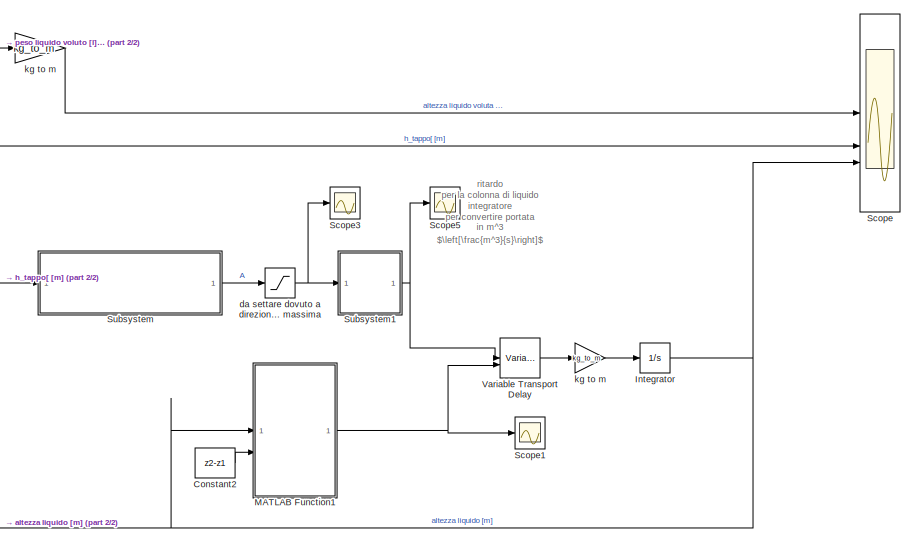
[diagram: root canvas - part 1/2, right side, full height]
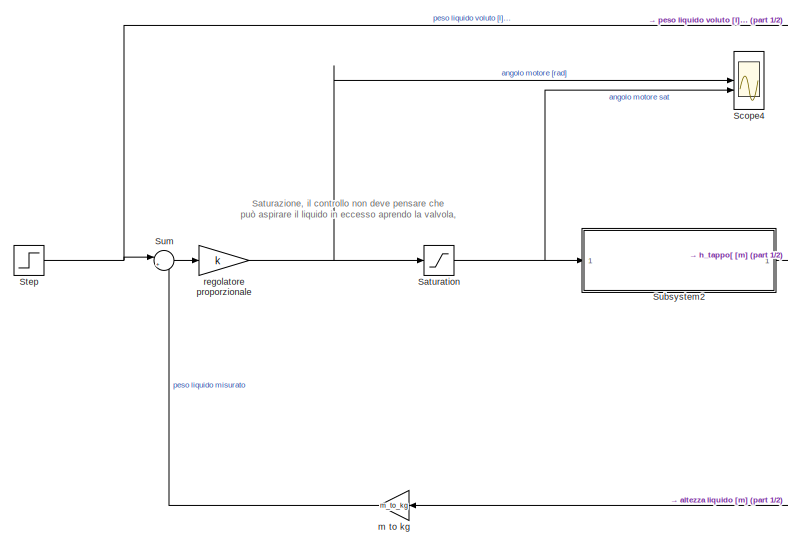
[diagram: root canvas - part 2/2, left side, full height]
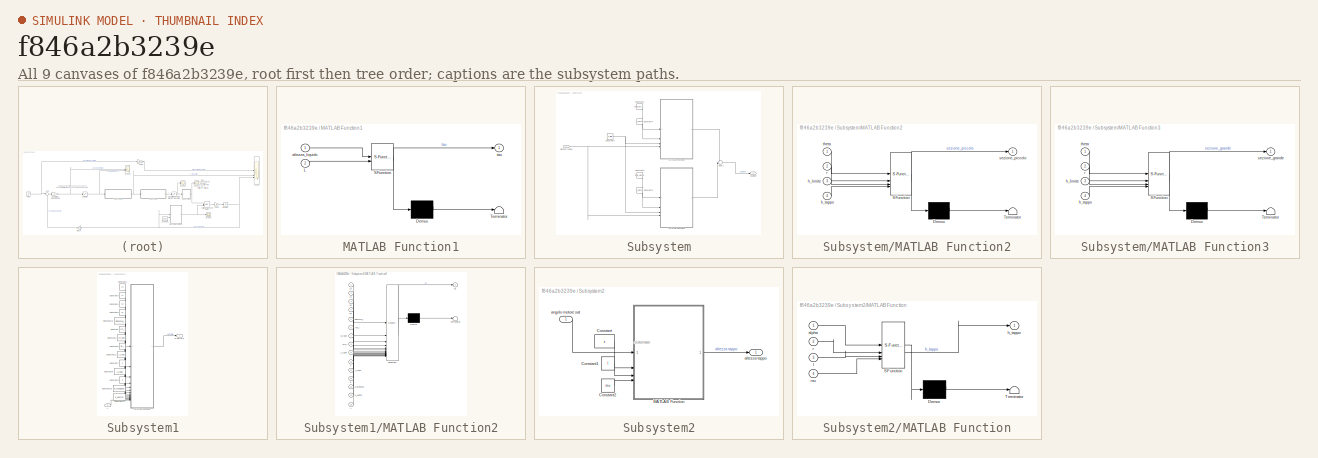
[diagram: thumbnail index - all 9 canvases of the model, root first then tree order]
MODEL slx_f846a2b3239e
KIND model
CONFIG AbsTol = auto
CONFIG EnableMultiTasking = off
CONFIG FixedStep = auto
CONFIG MaxStep = auto
CONFIG MinStep = auto
CONFIG RelTol = 1e-3
CONFIG SampleTimeConstraint = Unconstrained
CONFIG SolverName = VariableStepAuto
CONFIG StartTime = 0.0
CONFIG StopTime = T_sim
BLOCK [Constant] Constant2
  Value = z2-z1
BLOCK [Integrator] Integrator
  InitialCondition = livello_0
BLOCK [SubSystem] MATLAB Function1
  ErrorFcn = Stateflow.Translate.translate
  LibrarySourceBlock = simulink/User-Defined\nFunctions/MATLAB Function
  PermitHierarchicalResolution = ExplicitOnly
  SFBlockType = MATLAB Function
  TreatAsAtomicUnit = on
BLOCK [Demux] MATLAB Function1/ Demux 
  Outputs = 1
BLOCK [S-Function] MATLAB Function1/ SFunction 
  EnableBusSupport = on
  FunctionName = sf_sfun
  PortCounts = [2 2]
  SFcnIsStateOwnerBlock = off
  SFunctionDeploymentMode = off
  Tag = Stateflow S-Function 1
BLOCK [Terminator] MATLAB Function1/ Terminator 
BLOCK [Inport] MATLAB Function1/L
  Port = 2
BLOCK [Inport] MATLAB Function1/altezza_liquido
BLOCK [Outport] MATLAB Function1/tau
BLOCK [Saturate] Saturation
  LowerLimit = 0.001
  UpperLimit = pi
BLOCK [Scope] Scope
  Floating = off
  NumInputPorts = 3
  ScopeSpecificationString = Simulink.scopes.TimeScopeBlockCfg('CurrentConfiguration', extmgr.ConfigurationSet(extmgr.Configuration('Core','General UI',true),extmgr.Configuration('Core','Source UI',true),extmgr.Configuration('Sources','WiredSimulink',true),extmgr.Configuration('Visuals','Time Domain',true,'SerializedDisplays',{struct('MinYLimReal','-0.01137','MaxYLimReal','0.07615','YLabelReal','','MinYLimMag','0.00000','MaxY...<+1608ch>
BLOCK [Scope] Scope1
  Floating = off
  NumInputPorts = 1
  ScopeSpecificationString = Simulink.scopes.TimeScopeBlockCfg('CurrentConfiguration', extmgr.ConfigurationSet(extmgr.Configuration('Core','General UI',true),extmgr.Configuration('Core','Source UI',true),extmgr.Configuration('Sources','WiredSimulink',true,'DataLoggingVariableName','ScopeData1'),extmgr.Configuration('Visuals','Time Domain',true,'SerializedDisplays',{struct('MinYLimReal','0.31635','MaxYLimReal','0.3196','YLabel...<+1398ch>
BLOCK [Scope] Scope3
  Floating = off
  NumInputPorts = 1
  ScopeSpecificationString = Simulink.scopes.TimeScopeBlockCfg('CurrentConfiguration', extmgr.ConfigurationSet(extmgr.Configuration('Core','General UI',true),extmgr.Configuration('Core','Source UI',true),extmgr.Configuration('Sources','WiredSimulink',true,'DataLoggingVariableName','ScopeData2'),extmgr.Configuration('Visuals','Time Domain',true,'SerializedDisplays',{struct('MinYLimReal','-0.000001','MaxYLimReal','0.000012','YL...<+1439ch>
BLOCK [Scope] Scope4
  Floating = off
  NumInputPorts = 2
  ScopeSpecificationString = Simulink.scopes.TimeScopeBlockCfg('CurrentConfiguration', extmgr.ConfigurationSet(extmgr.Configuration('Core','General UI',true),extmgr.Configuration('Core','Source UI',true),extmgr.Configuration('Sources','WiredSimulink',true,'DataLoggingVariableName','ScopeData4'),extmgr.Configuration('Visuals','Time Domain',true,'SerializedDisplays',{struct('MinYLimReal','-0.06254','MaxYLimReal','0.56283','YLab...<+1677ch>
BLOCK [Scope] Scope5
  Floating = off
  NumInputPorts = 1
  ScopeSpecificationString = Simulink.scopes.TimeScopeBlockCfg('CurrentConfiguration', extmgr.ConfigurationSet(extmgr.Configuration('Core','General UI',true),extmgr.Configuration('Core','Source UI',true),extmgr.Configuration('Sources','WiredSimulink',true,'DataLoggingVariableName','ScopeData1'),extmgr.Configuration('Visuals','Time Domain',true,'SerializedDisplays',{struct('MinYLimReal','-0.00006','MaxYLimReal','0.000007','YLa...<+1371ch>
BLOCK [Step] Step
  After = step_liq
  SampleTime = 0
  Time = step_time
BLOCK [SubSystem] Subsystem
BLOCK [Constant] Subsystem/Constant1
  Value = theta_piccolo
BLOCK [Constant] Subsystem/Constant3
  Value = theta_grande
  VectorParams1D = off
BLOCK [Constant] Subsystem/Constant4
  Value = r_piccolo
BLOCK [Constant] Subsystem/Constant5
  Value = r_grande
BLOCK [Constant] Subsystem/Constant6
  Value = h_limite
BLOCK [SubSystem] Subsystem/MATLAB Function2
  ErrorFcn = Stateflow.Translate.translate
  LibrarySourceBlock = simulink/User-Defined\nFunctions/MATLAB Function
  PermitHierarchicalResolution = ExplicitOnly
  SFBlockType = MATLAB Function
  TreatAsAtomicUnit = on
BLOCK [Demux] Subsystem/MATLAB Function2/ Demux 
  Outputs = 1
BLOCK [S-Function] Subsystem/MATLAB Function2/ SFunction 
  EnableBusSupport = on
  FunctionName = sf_sfun
  PortCounts = [4 2]
  SFcnIsStateOwnerBlock = off
  SFunctionDeploymentMode = off
  Tag = Stateflow S-Function 3
BLOCK [Terminator] Subsystem/MATLAB Function2/ Terminator 
BLOCK [Inport] Subsystem/MATLAB Function2/h_limite
  Port = 3
BLOCK [Inport] Subsystem/MATLAB Function2/h_tappo
  Port = 4
BLOCK [Inport] Subsystem/MATLAB Function2/r
  Port = 2
BLOCK [Outport] Subsystem/MATLAB Function2/sezione_piccolo
BLOCK [Inport] Subsystem/MATLAB Function2/theta
BLOCK [SubSystem] Subsystem/MATLAB Function3
  ErrorFcn = Stateflow.Translate.translate
  LibrarySourceBlock = simulink/User-Defined\nFunctions/MATLAB Function
  PermitHierarchicalResolution = ExplicitOnly
  SFBlockType = MATLAB Function
  TreatAsAtomicUnit = on
BLOCK [Demux] Subsystem/MATLAB Function3/ Demux 
  Outputs = 1
BLOCK [S-Function] Subsystem/MATLAB Function3/ SFunction 
  EnableBusSupport = on
  FunctionName = sf_sfun
  PortCounts = [4 2]
  SFcnIsStateOwnerBlock = off
  SFunctionDeploymentMode = off
  Tag = Stateflow S-Function 4
BLOCK [Terminator] Subsystem/MATLAB Function3/ Terminator 
BLOCK [Inport] Subsystem/MATLAB Function3/h_limite
  Port = 3
BLOCK [Inport] Subsystem/MATLAB Function3/h_tappo
  Port = 4
BLOCK [Inport] Subsystem/MATLAB Function3/r
  Port = 2
BLOCK [Outport] Subsystem/MATLAB Function3/sezione_grande
BLOCK [Inport] Subsystem/MATLAB Function3/theta
BLOCK [Sum] Subsystem/Sum1
BLOCK [Inport] Subsystem/altezza tappo
BLOCK [Outport] Subsystem/sezione
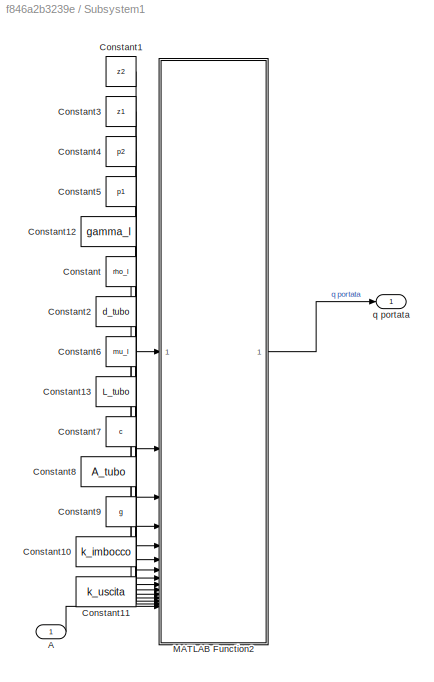
BLOCK [SubSystem] Subsystem1
BLOCK [Inport] Subsystem1/A
BLOCK [Constant] Subsystem1/Constant
  Value = rho_l
BLOCK [Constant] Subsystem1/Constant1
  Value = z2
BLOCK [Constant] Subsystem1/Constant10
  Value = k_imbocco
BLOCK [Constant] Subsystem1/Constant11
  Value = k_uscita
BLOCK [Constant] Subsystem1/Constant12
  Value = gamma_l
BLOCK [Constant] Subsystem1/Constant13
  Value = L_tubo
BLOCK [Constant] Subsystem1/Constant2
  Value = d_tubo
BLOCK [Constant] Subsystem1/Constant3
  Value = z1
BLOCK [Constant] Subsystem1/Constant4
  Value = p2
BLOCK [Constant] Subsystem1/Constant5
  Value = p1
BLOCK [Constant] Subsystem1/Constant6
  Value = mu_l
BLOCK [Constant] Subsystem1/Constant7
  Value = c
BLOCK [Constant] Subsystem1/Constant8
  Value = A_tubo
BLOCK [Constant] Subsystem1/Constant9
  Value = g
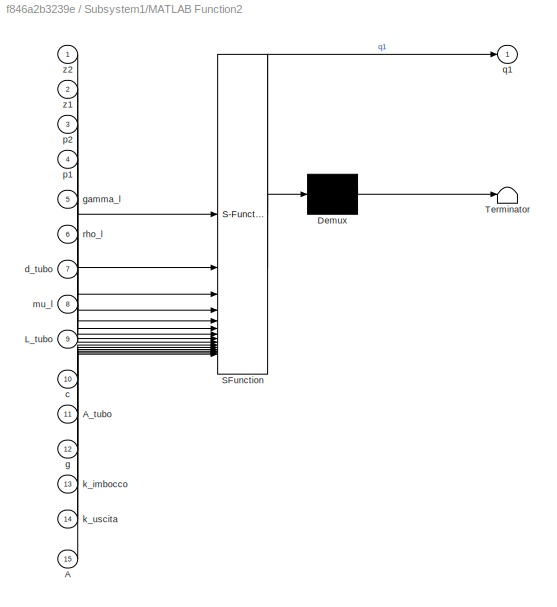
BLOCK [SubSystem] Subsystem1/MATLAB Function2
  ErrorFcn = Stateflow.Translate.translate
  LibrarySourceBlock = simulink/User-Defined\nFunctions/MATLAB Function
  PermitHierarchicalResolution = ExplicitOnly
  SFBlockType = MATLAB Function
  TreatAsAtomicUnit = on
BLOCK [Demux] Subsystem1/MATLAB Function2/ Demux 
  Outputs = 1
BLOCK [S-Function] Subsystem1/MATLAB Function2/ SFunction 
  EnableBusSupport = on
  FunctionName = sf_sfun
  PortCounts = [15 2]
  SFcnIsStateOwnerBlock = off
  SFunctionDeploymentMode = off
  Tag = Stateflow S-Function 5
BLOCK [Terminator] Subsystem1/MATLAB Function2/ Terminator 
BLOCK [Inport] Subsystem1/MATLAB Function2/A
  Port = 15
BLOCK [Inport] Subsystem1/MATLAB Function2/A_tubo
  Port = 11
BLOCK [Inport] Subsystem1/MATLAB Function2/L_tubo
  Port = 9
BLOCK [Inport] Subsystem1/MATLAB Function2/c
  Port = 10
BLOCK [Inport] Subsystem1/MATLAB Function2/d_tubo
  Port = 7
BLOCK [Inport] Subsystem1/MATLAB Function2/g
  Port = 12
BLOCK [Inport] Subsystem1/MATLAB Function2/gamma_l
  Port = 5
BLOCK [Inport] Subsystem1/MATLAB Function2/k_imbocco
  Port = 13
BLOCK [Inport] Subsystem1/MATLAB Function2/k_uscita
  Port = 14
BLOCK [Inport] Subsystem1/MATLAB Function2/mu_l
  Port = 8
BLOCK [Inport] Subsystem1/MATLAB Function2/p1
  Port = 4
BLOCK [Inport] Subsystem1/MATLAB Function2/p2
  Port = 3
BLOCK [Outport] Subsystem1/MATLAB Function2/q1
BLOCK [Inport] Subsystem1/MATLAB Function2/rho_l
  Port = 6
BLOCK [Inport] Subsystem1/MATLAB Function2/z1
  Port = 2
BLOCK [Inport] Subsystem1/MATLAB Function2/z2
BLOCK [Outport] Subsystem1/q portata
BLOCK [SubSystem] Subsystem2
BLOCK [Constant] Subsystem2/Constant
  Value = r
BLOCK [Constant] Subsystem2/Constant1
  Value = l
BLOCK [Constant] Subsystem2/Constant2
  Value = mu
BLOCK [SubSystem] Subsystem2/MATLAB Function
  ErrorFcn = Stateflow.Translate.translate
  LibrarySourceBlock = simulink/User-Defined\nFunctions/MATLAB Function
  PermitHierarchicalResolution = ExplicitOnly
  SFBlockType = MATLAB Function
  TreatAsAtomicUnit = on
BLOCK [Demux] Subsystem2/MATLAB Function/ Demux 
  Outputs = 1
BLOCK [S-Function] Subsystem2/MATLAB Function/ SFunction 
  EnableBusSupport = on
  FunctionName = sf_sfun
  PortCounts = [4 2]
  SFcnIsStateOwnerBlock = off
  SFunctionDeploymentMode = off
  Tag = Stateflow S-Function 2
BLOCK [Terminator] Subsystem2/MATLAB Function/ Terminator 
BLOCK [Inport] Subsystem2/MATLAB Function/alpha
BLOCK [Outport] Subsystem2/MATLAB Function/h_tappo
BLOCK [Inport] Subsystem2/MATLAB Function/l
  Port = 3
BLOCK [Inport] Subsystem2/MATLAB Function/mu
  Port = 4
BLOCK [Inport] Subsystem2/MATLAB Function/r
  Port = 2
BLOCK [Outport] Subsystem2/altezza tappo
BLOCK [Inport] Subsystem2/angolo motore sat
BLOCK [Sum] Sum
  Inputs = |+-
BLOCK [VariableTransportDelay] Variable Transport Delay
  MaximumDelay = tau_max
BLOCK [Saturate] da settare dovuto a direzionatore di flusso che limita apertura massima
  LowerLimit = 0
  UpperLimit = 100
BLOCK [Gain] kg to m
  Gain = kg_to_m
  Multiplication = Matrix(u*K)
BLOCK [Gain] kg to m  
  Gain = kg_to_m
  Multiplication = Matrix(u*K)
BLOCK [Gain] m to kg
  Gain = m_to_kg
BLOCK [Gain] regolatore proporzionale
  Gain = k
  Multiplication = Matrix(u*K)
ANNOTATION (root): Saturazione , il controllo non deve pensare che può aspirare il liquido in eccesso aprendo la valvola,
ANNOTATION (root): ritardo per la colonna di liquido integratore per convertire portata $\left[\frac{m^3}{s}\right]$ in m^3 proporzionale per convertire volume in altezza
ANNOTATION Subsystem2: sistemare
LINE Constant2:1 -> MATLAB Function1:2
NET Integrator:1 -> MATLAB Function1:1, Scope:3, m to kg:1
NET MATLAB Function1:1 -> Scope1:1, Variable Transport Delay:2
NET Saturation:1 -> Scope4:2, Subsystem2:1
NET Step:1 -> Sum:1, kg to m:1
LINE Subsystem/Constant1:1 -> Subsystem/MATLAB Function2:1
LINE Subsystem/Constant3:1 -> Subsystem/MATLAB Function3:1
LINE Subsystem/Constant4:1 -> Subsystem/MATLAB Function2:2
LINE Subsystem/Constant5:1 -> Subsystem/MATLAB Function3:2
NET Subsystem/Constant6:1 -> Subsystem/MATLAB Function2:3, Subsystem/MATLAB Function3:3
LINE Subsystem/MATLAB Function2:1 -> Subsystem/Sum1:1
LINE Subsystem/MATLAB Function3:1 -> Subsystem/Sum1:2
LINE Subsystem/Sum1:1 -> Subsystem/sezione:1
NET Subsystem/altezza tappo:1 -> Subsystem/MATLAB Function2:4, Subsystem/MATLAB Function3:4
LINE Subsystem1/A:1 -> Subsystem1/MATLAB Function2:15
LINE Subsystem1/Constant10:1 -> Subsystem1/MATLAB Function2:13
LINE Subsystem1/Constant11:1 -> Subsystem1/MATLAB Function2:14
LINE Subsystem1/Constant12:1 -> Subsystem1/MATLAB Function2:5
LINE Subsystem1/Constant13:1 -> Subsystem1/MATLAB Function2:9
LINE Subsystem1/Constant1:1 -> Subsystem1/MATLAB Function2:1
LINE Subsystem1/Constant2:1 -> Subsystem1/MATLAB Function2:7
LINE Subsystem1/Constant3:1 -> Subsystem1/MATLAB Function2:2
LINE Subsystem1/Constant4:1 -> Subsystem1/MATLAB Function2:3
LINE Subsystem1/Constant5:1 -> Subsystem1/MATLAB Function2:4
LINE Subsystem1/Constant6:1 -> Subsystem1/MATLAB Function2:8
LINE Subsystem1/Constant7:1 -> Subsystem1/MATLAB Function2:10
LINE Subsystem1/Constant8:1 -> Subsystem1/MATLAB Function2:11
LINE Subsystem1/Constant9:1 -> Subsystem1/MATLAB Function2:12
LINE Subsystem1/Constant:1 -> Subsystem1/MATLAB Function2:6
LINE Subsystem1/MATLAB Function2:1 -> Subsystem1/q portata:1
NET Subsystem1:1 -> Scope5:1, Variable Transport Delay:1
LINE Subsystem2/Constant1:1 -> Subsystem2/MATLAB Function:3
LINE Subsystem2/Constant2:1 -> Subsystem2/MATLAB Function:4
LINE Subsystem2/Constant:1 -> Subsystem2/MATLAB Function:2
LINE Subsystem2/MATLAB Function:1 -> Subsystem2/altezza tappo:1
LINE Subsystem2/angolo motore sat:1 -> Subsystem2/MATLAB Function:1
NET Subsystem2:1 -> Scope:2, Subsystem:1
LINE Subsystem:1 -> da settare dovuto a direzionatore di flusso che limita apertura massima:1
LINE Sum:1 -> regolatore proporzionale:1
LINE Variable Transport Delay:1 -> kg to m  :1
NET da settare dovuto a direzionatore di flusso che limita apertura massima:1 -> Scope3:1, Subsystem1:1
LINE kg to m  :1 -> Integrator:1
LINE kg to m:1 -> Scope:1
LINE m to kg:1 -> Sum:2
NET regolatore proporzionale:1 -> Saturation:1, Scope4:1
note: NET lines group one-source signal fan-out (src -> all destinations, sorted); 1:1 wires keep LINE
CHART MATLAB Function1 states=1 transitions=1
  STATE_LABEL 'eML_blk_kernel()'
  STATE_LABEL 'SCRIPT:\nfunction tau = variable_delay(altezza_liquido, L)\n\n    \ntau = sqrt(2* (L - ( altezza_liquido) ) / 9.81);\n'
CHART Subsystem2/MATLAB Function states=1 transitions=1
  STATE_LABEL 'eML_blk_kernel()'
  STATE_LABEL 'SCRIPT:\n\nfunction h_tappo = manovellismo(alpha, r, l, mu)\n\nh_tappo = (r+l) - (r*cos(alpha) + l/mu*sqrt(mu^2-sin(alpha)^2))\n\nend\n\n\n'
CHART Subsystem/MATLAB Function2 states=1 transitions=1
  STATE_LABEL 'eML_blk_kernel()'
  STATE_LABEL 'SCRIPT:\nfunction sezione_piccolo = altezza_sezione_piccolo(theta, r, h_limite, h_tappo)\n\nif h_tappo >= h_limite\n    h_tappo = h_limite;     % questa sezione non si apre di più quando si apre il grande\nend\n\n\nm = tan(theta);\ny0 = r * m;\n\nxg = r;\nyg = y0;\n\na = sin(pi/2 - theta) * h_tappo;\n\nxr = r - a * sin(theta);\nyr = y0+a*cos(theta);\n\n\nsezione_piccolo = pi * (xg - xr) * a;\n'
CHART Subsystem/MATLAB Function3 states=1 transitions=1
  STATE_LABEL 'eML_blk_kernel()'
  STATE_LABEL 'SCRIPT:\nfunction sezione_grande = altezza_sezione_grande(theta, r, h_limite, h_tappo)\n\nif h_tappo < h_limite\n    h_tappo = 0;    \nelse\n    h_tappo = h_tappo - h_limite;\nend\n\nm = tan(theta);\ny0 = r * m;\n\nxg = r;\nyg = y0;\n\na = sin(pi/2 - theta) * h_tappo;\n\nxr = r - a * sin(theta);\nyr = y0+a*cos(theta);\n\n\nsezione_grande = pi * (xg - xr) * a;\n'
CHART Subsystem1/MATLAB Function2 states=1 transitions=1
  STATE_LABEL 'eML_blk_kernel()'
  STATE_LABEL 'SCRIPT:\nfunction q1 = fcn(z2, z1, p2, p1, gamma_l, rho_l, d_tubo, mu_l, L_tubo, c, A_tubo, g, k_imbocco, k_uscita, A)\n\nk_visc_p = (64*L_tubo) / (rho_l*(d_tubo/mu_l)*(c*A)/A_tubo) * (L_tubo/d_tubo);\ncaa = (c*A/A_tubo)^2;\n\nAA = -(k_imbocco*caa+k_uscita+1)/(2*g);\nBB = -k_visc_p*caa/(2*g);\nCC = (z2-z1)+(p2-p1)/gamma_l;\n\nv11 = (-BB + sqrt(BB^2-4*AA*CC)) / (2*AA); % col - veniva soluzione negativa\n\n\n\nq1...<+13ch>'
CHART  states=0 transitions=0
CHART  states=0 transitions=0
CHART  states=0 transitions=0
CHART  states=0 transitions=0
CHART  states=0 transitions=0
